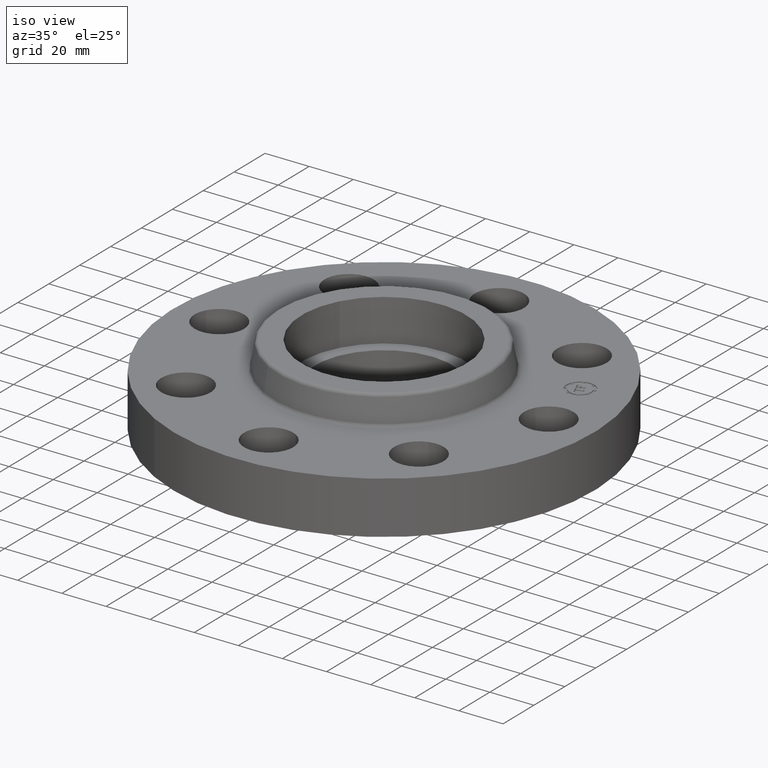
[diagram: clean part render]
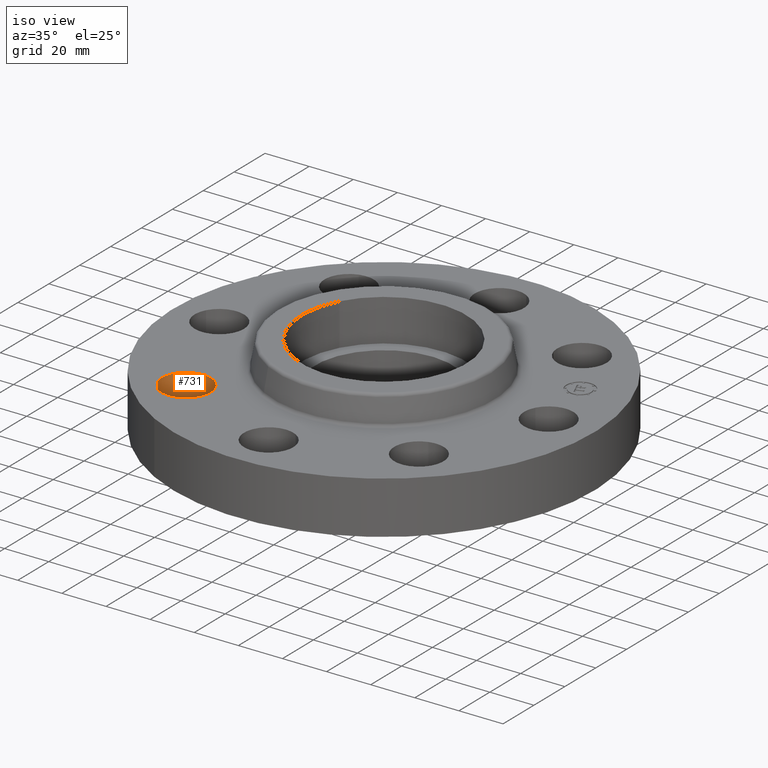
[diagram: same view with one face highlighted and labeled with its STEP entity id]
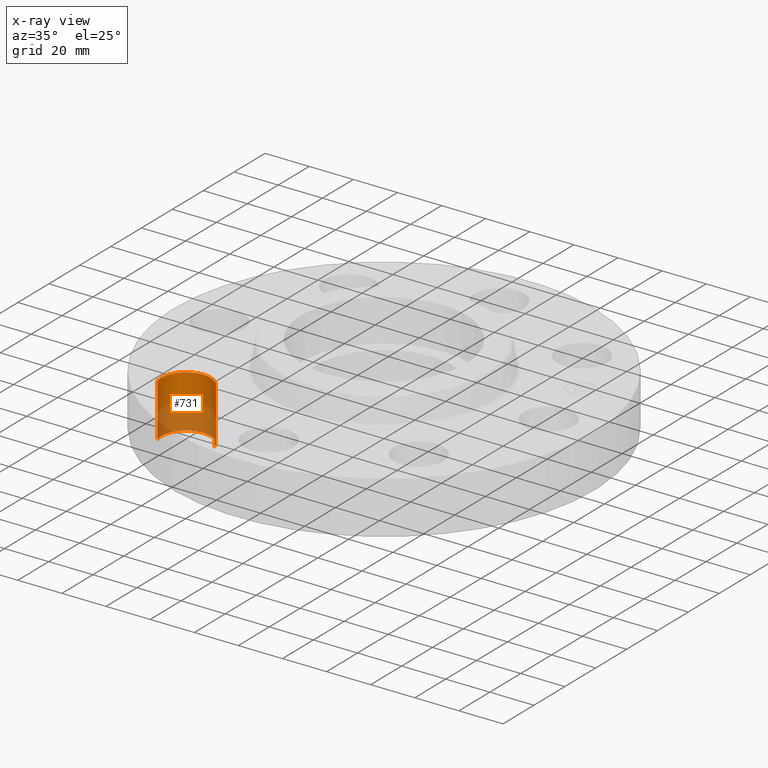
[diagram: x-ray of the same camera — body ghosted, the highlighted face saturated]
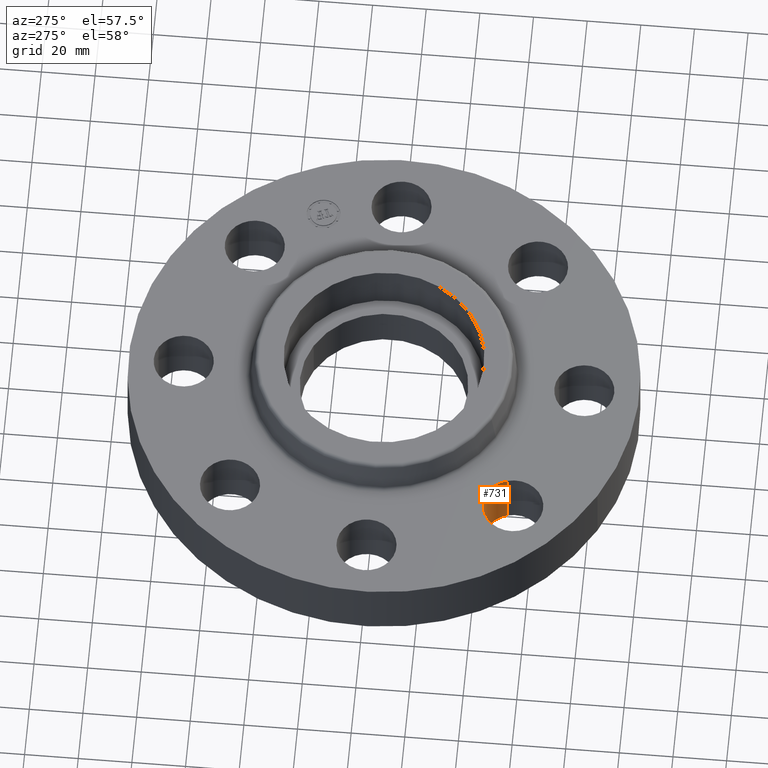
[diagram: same view with one face highlighted and labeled with its STEP entity id]
A machine part, iso view. The second image highlights one B-rep face of the part: STEP entity #731.
The next image is the same camera in x-ray: the body ghosted, the highlighted face saturated — about 48% of this face is hidden behind the body in this view.
A second angle (auxiliary view) of the same face is appended — the face is thin or edge-on in the first view.
In plain terms, the highlighted cylindrical surface (edge-blend (fillet) strip) has radius 11.176 mm, axis along (-0, 0, -1).
Its self-contained STEP definition (entity closure, byte-faithful):
#235=AXIS2_PLACEMENT_3D('Circle Axis2P3D',#233,#234,$) ;
#704=AXIS2_PLACEMENT_3D('Cylinder Axis2P3D',#701,#702,#703) ;
#722=AXIS2_PLACEMENT_3D('Circle Axis2P3D',#720,#721,$) ;
#228=CARTESIAN_POINT('Vertex',(-1.6566920995,-1.95501654299,0.)) ;
#230=CARTESIAN_POINT('Vertex',(-2.50109577389,-2.2027713304,0.)) ;
#233=CARTESIAN_POINT('Axis2P3D Location',(-2.0788939367,-2.0788939367,0.)) ;
#701=CARTESIAN_POINT('Axis2P3D Location',(-2.0788939367,-2.0788939367,0.93606299213)) ;
#706=CARTESIAN_POINT('Line Origine',(-2.50109577389,-2.2027713304,0.470000000002)) ;
#710=CARTESIAN_POINT('Vertex',(-2.50109577389,-2.2027713304,0.940000000004)) ;
#713=CARTESIAN_POINT('Line Origine',(-1.6566920995,-1.95501654299,0.470000000002)) ;
#717=CARTESIAN_POINT('Vertex',(-1.6566920995,-1.95501654299,0.940000000004)) ;
#720=CARTESIAN_POINT('Axis2P3D Location',(-2.0788939367,-2.0788939367,0.940000000004)) ;
#234=DIRECTION('Axis2P3D Direction',(0.,0.,-0.0393700787402)) ;
#702=DIRECTION('Axis2P3D Direction',(-0.,0.,-0.0393700787402)) ;
#703=DIRECTION('Axis2P3D XDirection',(0.0377775444876,0.0110842335096,-0.)) ;
#707=DIRECTION('Vector Direction',(0.,0.,-0.0393700787402)) ;
#714=DIRECTION('Vector Direction',(0.,0.,-0.0393700787402)) ;
#721=DIRECTION('Axis2P3D Direction',(-0.,0.,-0.0393700787402)) ;
#708=VECTOR('Line Direction',#707,0.0393700787402) ;
#715=VECTOR('Line Direction',#714,0.0393700787402) ;
#726=ORIENTED_EDGE('',*,*,#712,.F.) ;
#727=ORIENTED_EDGE('',*,*,#237,.T.) ;
#728=ORIENTED_EDGE('',*,*,#719,.T.) ;
#729=ORIENTED_EDGE('',*,*,#724,.F.) ;
#731=ADVANCED_FACE('PartBody',(#730),#705,.F.) ;
#236=CIRCLE('generated circle',#235,0.440000000002) ;
#723=CIRCLE('generated circle',#722,0.440000000002) ;
#705=CYLINDRICAL_SURFACE('generated cylinder',#704,0.440000000002) ;
#237=EDGE_CURVE('',#231,#229,#236,.T.) ;
#712=EDGE_CURVE('',#231,#711,#709,.F.) ;
#719=EDGE_CURVE('',#229,#718,#716,.F.) ;
#724=EDGE_CURVE('',#711,#718,#723,.T.) ;
#725=EDGE_LOOP('',(#726,#727,#728,#729)) ;
#730=FACE_OUTER_BOUND('',#725,.T.) ;
#709=LINE('Line',#706,#708) ;
#716=LINE('Line',#713,#715) ;
#229=VERTEX_POINT('',#228) ;
#231=VERTEX_POINT('',#230) ;
#711=VERTEX_POINT('',#710) ;
#718=VERTEX_POINT('',#717) ;